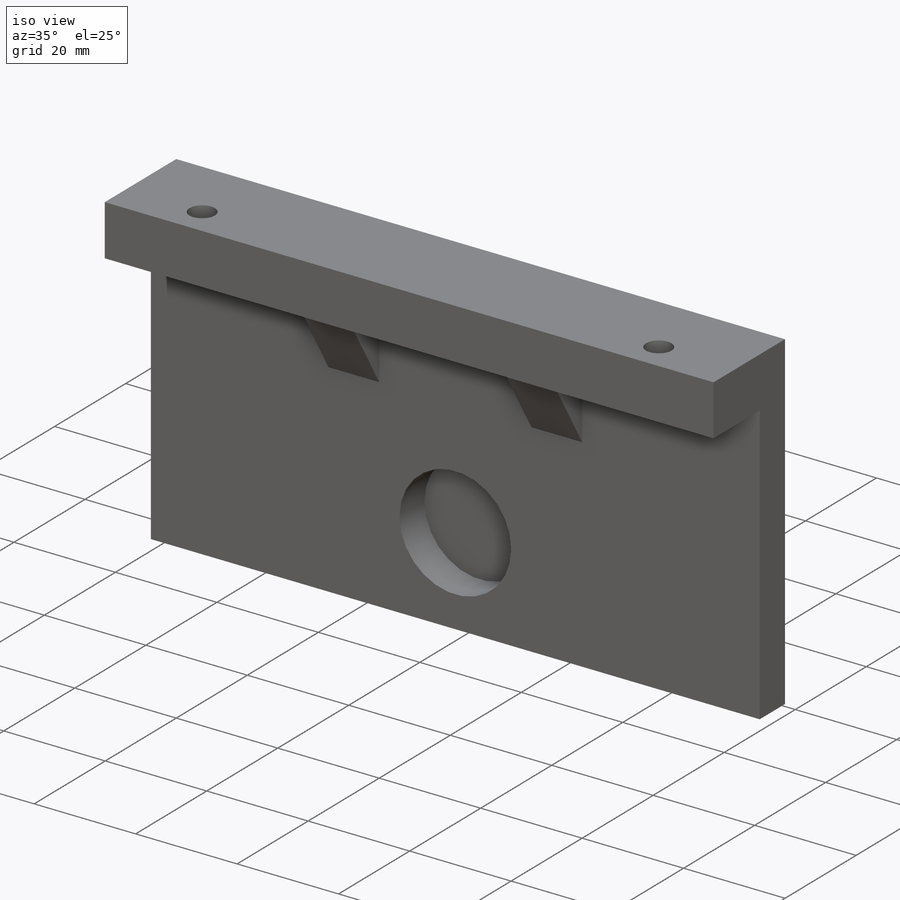
[diagram: iso view]
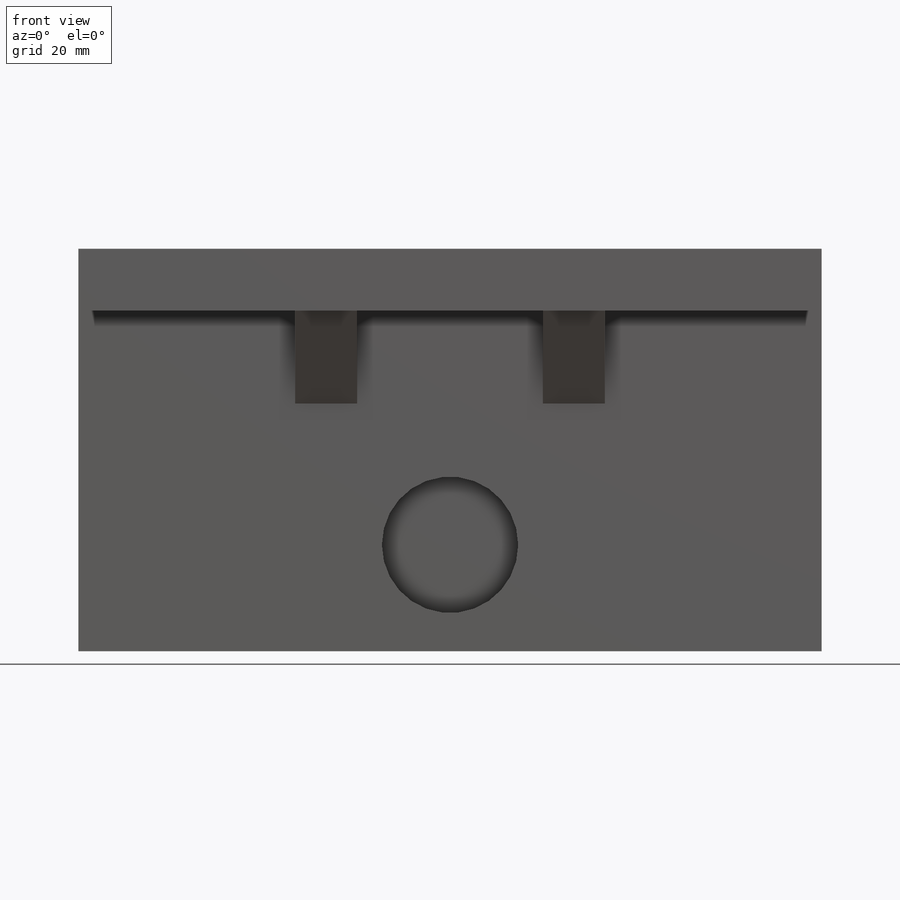
[diagram: front view]
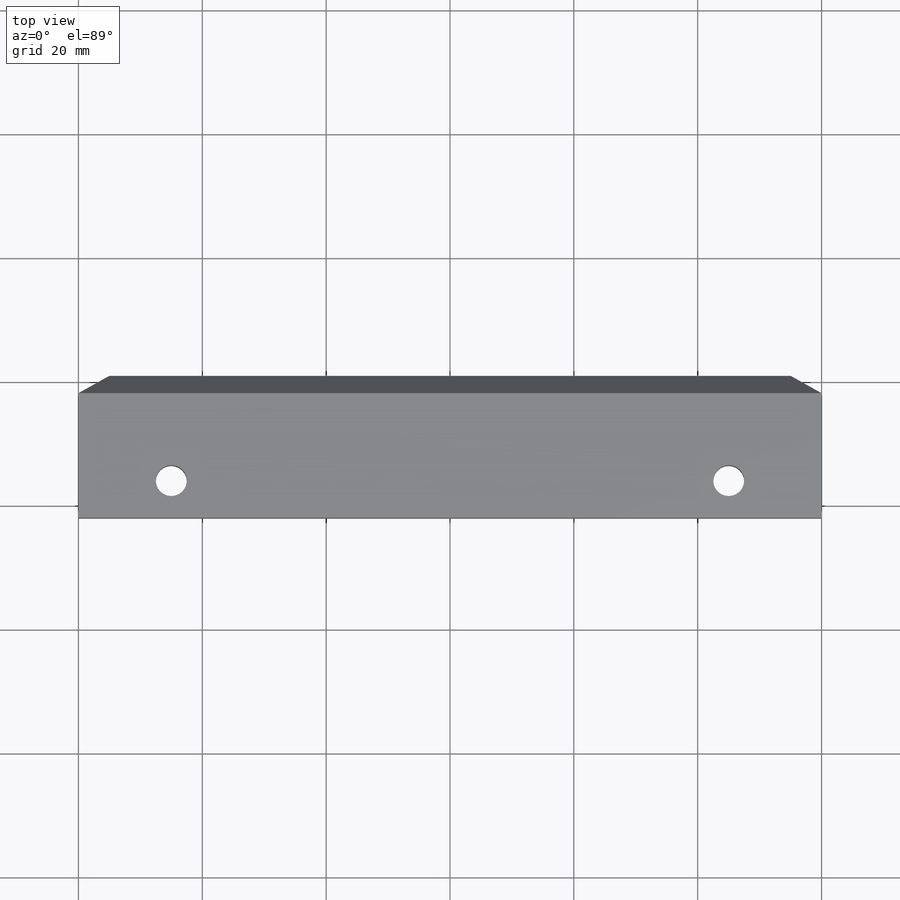
[diagram: top view]
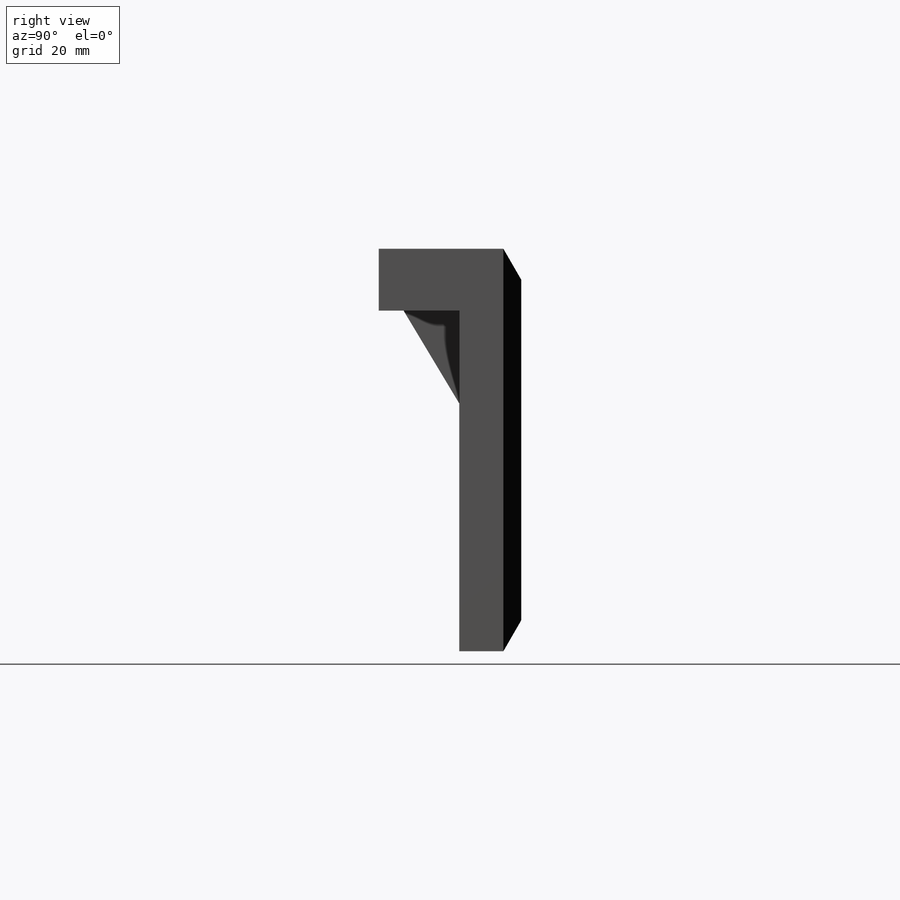
[diagram: right view]
SOLIDWORKS PART (.sldprt)
format: sldprt  version: not decoded by parser v0  size: 292,864 bytes
history: native  units: mm
features: sketch x6, plane x5, cut_extrude x3, extrude x2, chamfer x2, material x1, mirror x1 (+9 scaffold rows collapsed)
feature tree (29):
  scaffold x9  (default folders/planes/origin — collapsed)
  material  "Material <not specified>"
  plane  "Plan de face"
  plane  "Plan de dessus"
  plane  "Plan de droite"
  sketch  "Sketch1"  dims[D1=60.0mm D2=65.0mm D3=170.0mm D4=65.0mm]
  extrude  "Boss-Extrude1"  Depth=10mm
  sketch  "Sketch5"  dims[D1=22.0mm D2=60.0mm D3=17.17mm]
  sketch  "Sketch6"  dims[D1=10.0mm]
  extrude  "Boss-Extrude2"  Depth=23mm
  chamfer  "Chamfer1"  Distance=5mm Angle=30deg
  cut_extrude  "Cut-Extrude4"  Depth=7mm
  sketch  "Sketch12"  dims[D1=5.0mm D2=20.0mm D3=6.0mm]
  cut_extrude  "Cut-Extrude6"  [1 undecoded]
  plane  "Plane1"  Offset=40mm
  plane  "Plane2"
  sketch  "Sketch13"  dims[c1.D1=4.0mm c1.D2=15.0mm c2.D1=10.0mm]
  mirror  "Mirror1"
  chamfer  "Chamfer3"  Distance=10mm Angle=45deg
  sketch  "Sketch14"  dims[c1.D1=2.35mm c1.D2=~1.033187mm c1.D3=~4.413249mm c1.D4=~6.744388mm c2.D4=90.0deg c3.D4=5.1mm c3.D5=2.5mm c3.D6=~3.080584mm c4.D6=90.0deg c5.D6=~3.080584mm c5.D5=2.5mm c6.D6=5.2mm]
  cut_extrude  "Cut-Extrude7"  Depth=5mm
decode coverage: 12 of 14 modeling features carry decoded parameters
note: ~ marks probable driven/reference dimensions
note: 1 parameter value undecoded
note: suppression state not decoded; provenance and decode notes live in map.json
